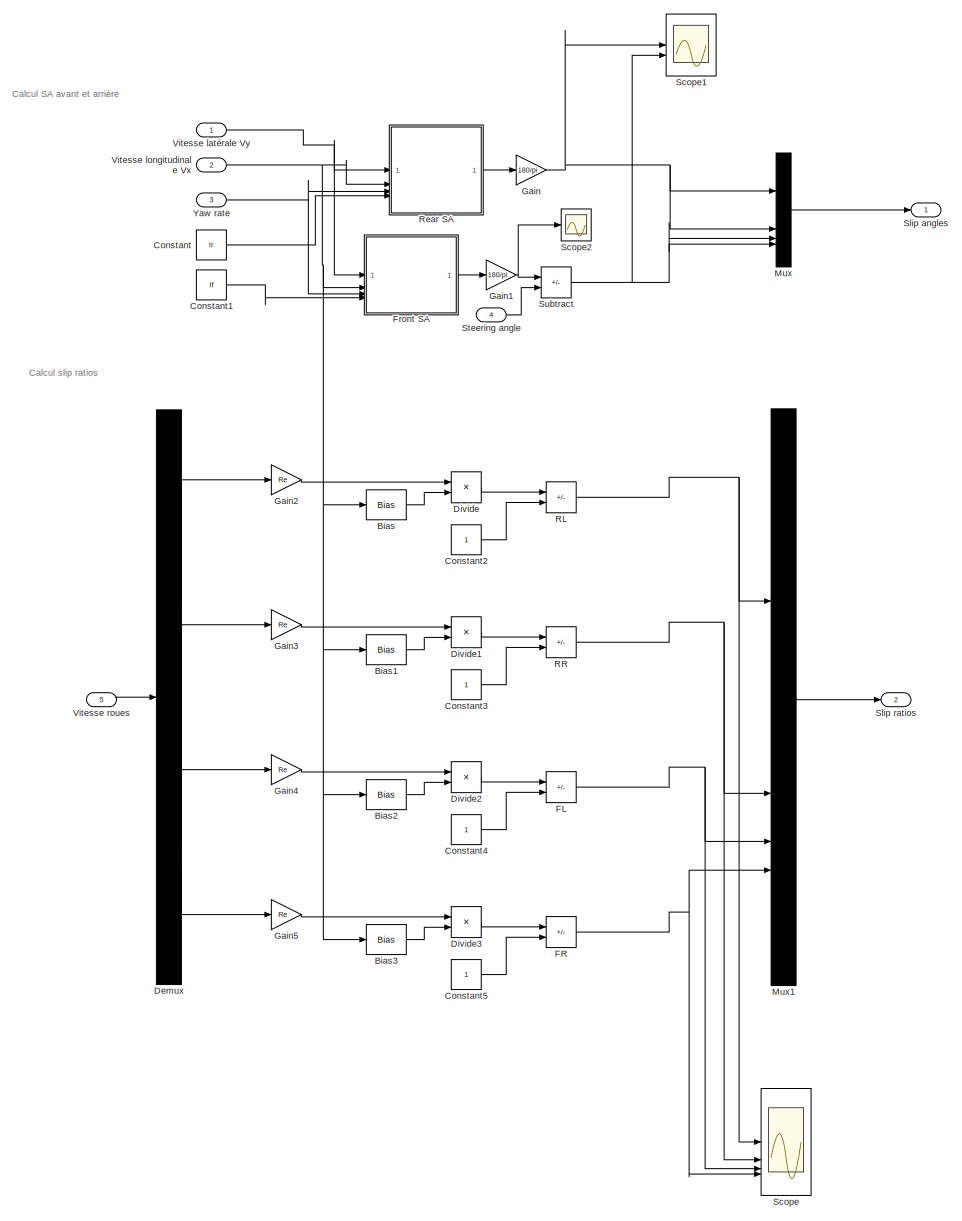
[diagram: root canvas - part 1/1, most of the canvas]
MODEL slx_21adb06280f5
KIND model
CONFIG AbsTol = auto
CONFIG EnableMultiTasking = off
CONFIG FixedStep = Ts
CONFIG MaxStep = auto
CONFIG MinStep = auto
CONFIG RelTol = 1e-3
CONFIG SampleTimeConstraint = Unconstrained
CONFIG SolverName = FixedStepAuto
CONFIG StartTime = 0.0
CONFIG StopTime = 10.0
BLOCK [Bias] Bias
  Bias = epsilon
  SaturateOnIntegerOverflow = off
BLOCK [Bias] Bias1
  Bias = epsilon
  SaturateOnIntegerOverflow = off
BLOCK [Bias] Bias2
  Bias = epsilon
  SaturateOnIntegerOverflow = off
BLOCK [Bias] Bias3
  Bias = epsilon
  SaturateOnIntegerOverflow = off
BLOCK [Constant] Constant
  Value = lr
BLOCK [Constant] Constant1
  Value = lf
BLOCK [Constant] Constant2
BLOCK [Constant] Constant3
BLOCK [Constant] Constant4
BLOCK [Constant] Constant5
BLOCK [Demux] Demux
BLOCK [Product] Divide
  Inputs = */
BLOCK [Product] Divide1
  Inputs = */
BLOCK [Product] Divide2
  Inputs = */
BLOCK [Product] Divide3
  Inputs = */
BLOCK [Sum] FL
  IconShape = rectangular
  Inputs = +-
BLOCK [Sum] FR
  IconShape = rectangular
  Inputs = +-
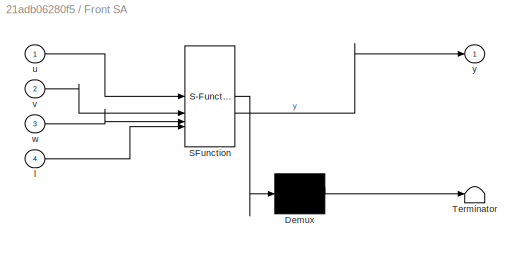
BLOCK [SubSystem] Front SA
  ErrorFcn = Stateflow.Translate.translate
  PermitHierarchicalResolution = ExplicitOnly
  SFBlockType = MATLAB Function
  TreatAsAtomicUnit = on
BLOCK [Demux] Front SA/ Demux 
  Outputs = 1
BLOCK [S-Function] Front SA/ SFunction 
  EnableBusSupport = on
  FunctionName = sf_sfun
  PortCounts = [4 2]
  SFcnIsStateOwnerBlock = off
  SFunctionDeploymentMode = off
  Tag = Stateflow S-Function 1
BLOCK [Terminator] Front SA/ Terminator 
BLOCK [Inport] Front SA/l
  Port = 4
BLOCK [Inport] Front SA/u
BLOCK [Inport] Front SA/v
  Port = 2
BLOCK [Inport] Front SA/w
  Port = 3
BLOCK [Outport] Front SA/y
BLOCK [Gain] Gain
  Gain = 180/pi
BLOCK [Gain] Gain1
  Gain = 180/pi
BLOCK [Gain] Gain2
  Gain = Re
BLOCK [Gain] Gain3
  Gain = Re
BLOCK [Gain] Gain4
  Gain = Re
BLOCK [Gain] Gain5
  Gain = Re
BLOCK [Mux] Mux
  DisplayOption = bar
BLOCK [Mux] Mux1
  DisplayOption = bar
BLOCK [Sum] RL
  IconShape = rectangular
  Inputs = +-
BLOCK [Sum] RR
  IconShape = rectangular
  Inputs = +-
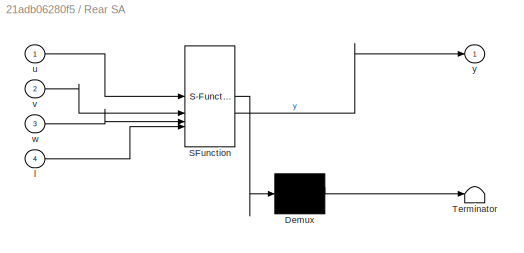
BLOCK [SubSystem] Rear SA
  ErrorFcn = Stateflow.Translate.translate
  PermitHierarchicalResolution = ExplicitOnly
  SFBlockType = MATLAB Function
  TreatAsAtomicUnit = on
BLOCK [Demux] Rear SA/ Demux 
  Outputs = 1
BLOCK [S-Function] Rear SA/ SFunction 
  EnableBusSupport = on
  FunctionName = sf_sfun
  PortCounts = [4 2]
  SFcnIsStateOwnerBlock = off
  SFunctionDeploymentMode = off
  Tag = Stateflow S-Function 2
BLOCK [Terminator] Rear SA/ Terminator 
BLOCK [Inport] Rear SA/l
  Port = 4
BLOCK [Inport] Rear SA/u
BLOCK [Inport] Rear SA/v
  Port = 2
BLOCK [Inport] Rear SA/w
  Port = 3
BLOCK [Outport] Rear SA/y
BLOCK [Scope] Scope
  Floating = off
  NumInputPorts = 4
  ScopeSpecificationString = Simulink.scopes.TimeScopeBlockCfg('CurrentConfiguration', extmgr.ConfigurationSet(extmgr.Configuration('Core','General UI',true),extmgr.Configuration('Core','Source UI',true),extmgr.Configuration('Sources','WiredSimulink',true),extmgr.Configuration('Visuals','Time Domain',true,'SerializedDisplays',{struct('MinYLimReal','-140.59287','MaxYLimReal','475.83911','YLabelReal','','MinYLimMag',' 0.00000',...<+1584ch>
BLOCK [Scope] Scope1
  Floating = off
  NumInputPorts = 2
  ScopeSpecificationString = Simulink.scopes.TimeScopeBlockCfg('CurrentConfiguration', extmgr.ConfigurationSet(extmgr.Configuration('Core','General UI',true),extmgr.Configuration('Core','Source UI',true),extmgr.Configuration('Sources','WiredSimulink',true,'DataLoggingVariableName','ScopeData1'),extmgr.Configuration('Visuals','Time Domain',true,'SerializedDisplays',{struct('MinYLimReal','-114.38105','MaxYLimReal','113.63393','...<+1600ch>
BLOCK [Scope] Scope2
  Floating = off
  NumInputPorts = 1
  ScopeSpecificationString = Simulink.scopes.TimeScopeBlockCfg('CurrentConfiguration', extmgr.ConfigurationSet(extmgr.Configuration('Core','General UI',true),extmgr.Configuration('Core','Source UI',true),extmgr.Configuration('Sources','WiredSimulink',true,'DataLoggingVariableName','ScopeData1'),extmgr.Configuration('Visuals','Time Domain',true,'SerializedDisplays',{struct('MinYLimReal','-12.47083','MaxYLimReal','12.4757','YLa...<+1484ch>
BLOCK [Outport] Slip angles
BLOCK [Outport] Slip ratios
  Port = 2
BLOCK [Inport] Steering angle
  Port = 4
BLOCK [Sum] Subtract
  IconShape = rectangular
  Inputs = +-
BLOCK [Inport] Vitesse latérale Vy
BLOCK [Inport] Vitesse longitudinale Vx
  Port = 2
BLOCK [Inport] Vitesse roues
  Port = 5
BLOCK [Inport] Yaw rate
  Port = 3
ANNOTATION (root): Calcul SA avant et arrière
ANNOTATION (root): Calcul slip ratios
LINE Bias1:1 -> Divide1:2
LINE Bias2:1 -> Divide2:2
LINE Bias3:1 -> Divide3:2
LINE Bias:1 -> Divide:2
LINE Constant1:1 -> Front SA:4
LINE Constant2:1 -> RL:2
LINE Constant3:1 -> RR:2
LINE Constant4:1 -> FL:2
LINE Constant5:1 -> FR:2
LINE Constant:1 -> Rear SA:4
LINE Demux:1 -> Gain2:1
LINE Demux:2 -> Gain3:1
LINE Demux:3 -> Gain4:1
LINE Demux:4 -> Gain5:1
LINE Divide1:1 -> RR:1
LINE Divide2:1 -> FL:1
LINE Divide3:1 -> FR:1
LINE Divide:1 -> RL:1
NET FL:1 -> Mux1:3, Scope:3
NET FR:1 -> Mux1:4, Scope:4
LINE Front SA:1 -> Gain1:1
NET Gain1:1 -> Scope2:1, Subtract:1
LINE Gain2:1 -> Divide:1
LINE Gain3:1 -> Divide1:1
LINE Gain4:1 -> Divide2:1
LINE Gain5:1 -> Divide3:1
NET Gain:1 -> Mux:1, Mux:2, Scope1:1
LINE Mux1:1 -> Slip ratios:1
LINE Mux:1 -> Slip angles:1
NET RL:1 -> Mux1:1, Scope:1
NET RR:1 -> Mux1:2, Scope:2
LINE Rear SA:1 -> Gain:1
LINE Steering angle:1 -> Subtract:2
NET Subtract:1 -> Mux:3, Mux:4, Scope1:2
NET Vitesse latérale Vy:1 -> Front SA:1, Rear SA:1
NET Vitesse longitudinale Vx:1 -> Bias1:1, Bias2:1, Bias3:1, Bias:1, Front SA:2, Rear SA:2
LINE Vitesse roues:1 -> Demux:1
NET Yaw rate:1 -> Front SA:3, Rear SA:3
note: NET lines group one-source signal fan-out (src -> all destinations, sorted); 1:1 wires keep LINE
CHART Front SA states=1 transitions=1
  STATE_LABEL 'eML_blk_kernel()'
  STATE_LABEL 'SCRIPT:\nfunction y = fcn(u, v, w, l)\n\ny = atan((u+l*w)/v);\nend\n'
CHART Rear SA states=1 transitions=1
  STATE_LABEL 'eML_blk_kernel()'
  STATE_LABEL 'SCRIPT:\nfunction y = fcn(u, v, w, l)\n\ny = atan((u-l*w)/v);\nend\n'
CHART  states=0 transitions=0
CHART  states=0 transitions=0
